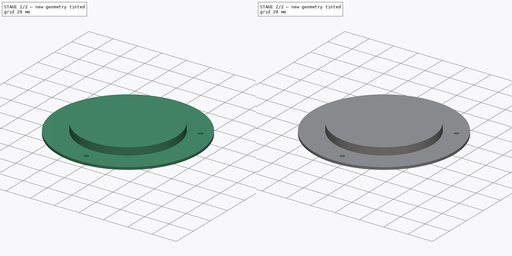
[diagram: build sequence overview — one tinted view per stage of 2, left to right]
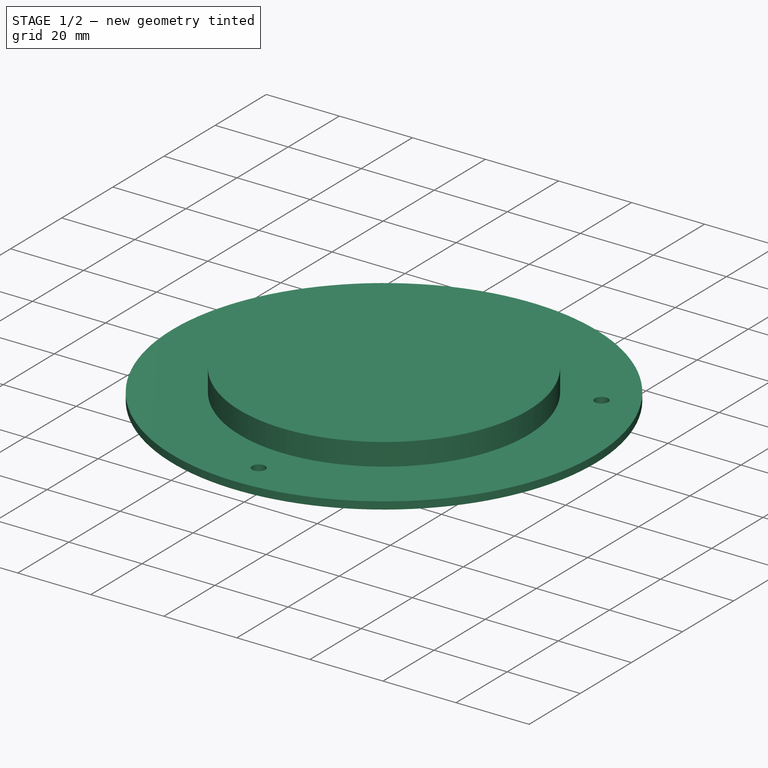
[diagram: stage 1 of 2 — iso view after this stage's code; geometry added in this stage tinted green]
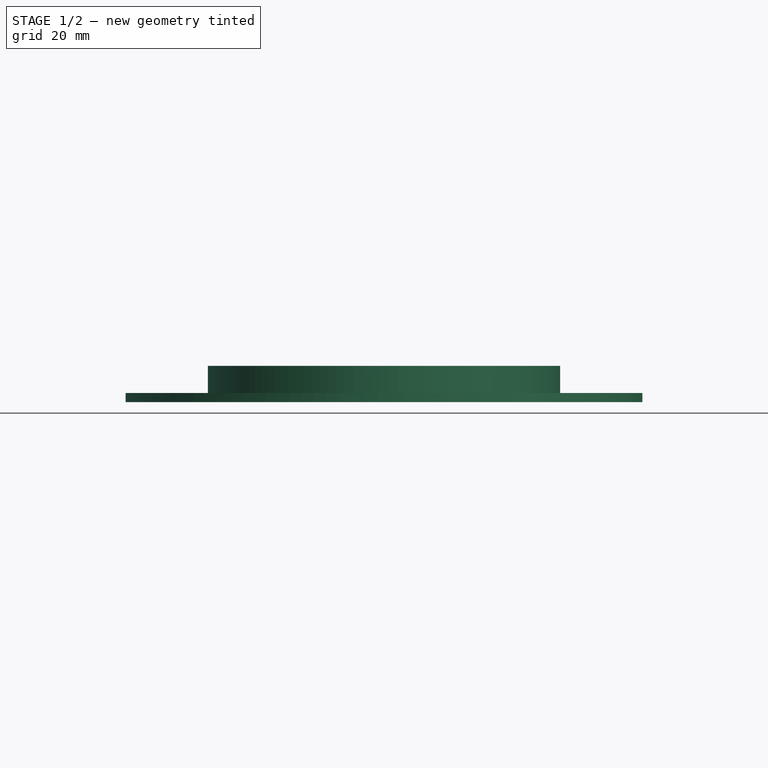
[diagram: stage 1 of 2 — front view after this stage's code; geometry added in this stage tinted green]
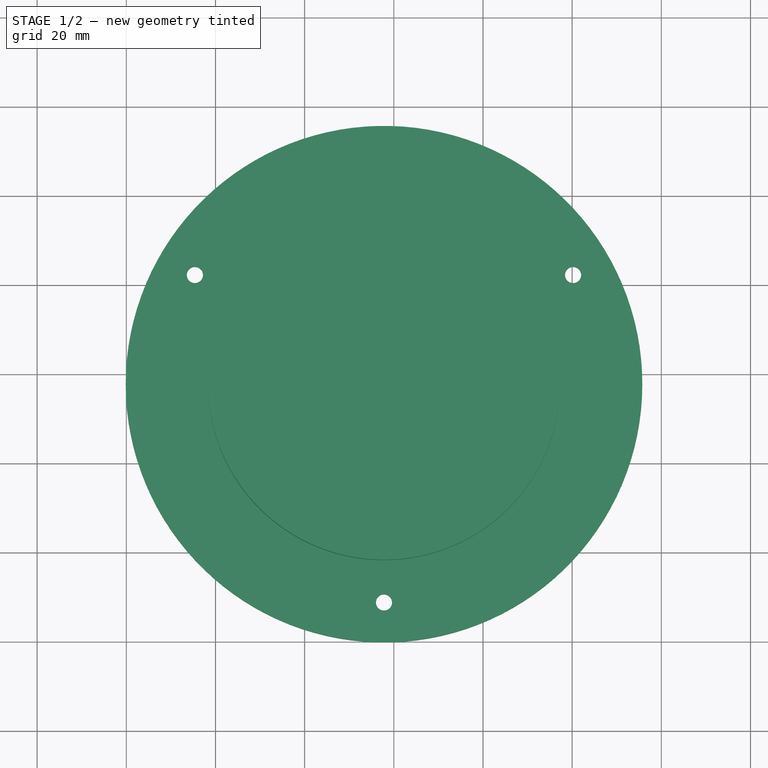
[diagram: stage 1 of 2 — top view after this stage's code; geometry added in this stage tinted green]
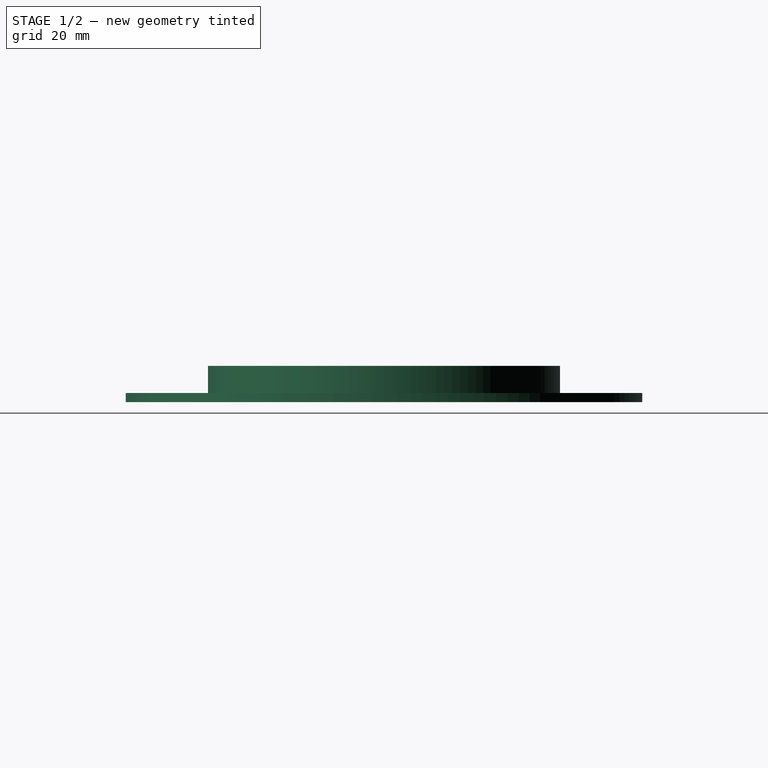
[diagram: stage 1 of 2 — right view after this stage's code; geometry added in this stage tinted green]
FCSTD DOCUMENT  (FreeCAD 0.22R38553 (Git))
Label: bottom_oops_fix
License: All rights reserved
LicenseURL: http://en.wikipedia.org/wiki/All_rights_reserved
objects: Sketcher::SketchObject×5, PartDesign::Pad×2, PartDesign::SubShapeBinder×1, PartDesign::Pocket×1, PartDesign::Body×1
note: 21 computed .brp shape members not serialized (recipe doc carries the construction recipe); baked Part::Feature solids carry a one-line shape summary decoded from their .brp

FEATURE [Sketcher::SketchObject] Sketch001  label="side"
  ArcFitTolerance = 1e-06
  FullyConstrained = true
  MakeInternals = false
  MapMode = 5
  expr: Constraints[23] = .Constraints.hole_distance
  sketch-geometry (22):
    g0: LineSegment StartX=-330.2 StartY=330.2 StartZ=0 EndX=-330.2 EndY=-330.2 EndZ=0
    g1: LineSegment StartX=-330.2 StartY=-330.2 StartZ=0 EndX=330.2 EndY=-330.2 EndZ=0
    g2: LineSegment StartX=330.2 StartY=-330.2 StartZ=0 EndX=330.2 EndY=330.2 EndZ=0
    g3: LineSegment StartX=330.2 StartY=330.2 StartZ=0 EndX=-330.2 EndY=330.2 EndZ=0
    g4: Circle CenterX=-292.1 CenterY=165.1 CenterZ=0 NormalX=0 NormalY=0 NormalZ=1 AngleXU=0 Radius=3.683
    g5: Circle CenterX=-292.1 CenterY=0 CenterZ=0 NormalX=0 NormalY=0 NormalZ=1 AngleXU=0 Radius=3.683
    g6: Circle CenterX=-292.1 CenterY=-165.1 CenterZ=0 NormalX=0 NormalY=0 NormalZ=1 AngleXU=0 Radius=3.683
    g7: Circle CenterX=292.1 CenterY=165.1 CenterZ=0 NormalX=0 NormalY=0 NormalZ=1 AngleXU=0 Radius=3.683
    g8: Circle CenterX=292.1 CenterY=0 CenterZ=0 NormalX=0 NormalY=0 NormalZ=1 AngleXU=0 Radius=3.683
    g9: Circle CenterX=292.1 CenterY=-165.1 CenterZ=0 NormalX=0 NormalY=0 NormalZ=1 AngleXU=0 Radius=3.683
    g10: LineSegment StartX=355.6 StartY=330.2 StartZ=0 EndX=355.6 EndY=320.2 EndZ=0
    g11: LineSegment StartX=355.6 StartY=320.2 StartZ=0 EndX=365.6 EndY=320.2 EndZ=0
    g12: LineSegment StartX=365.6 StartY=320.2 StartZ=0 EndX=365.6 EndY=330.2 EndZ=0
    g13: LineSegment StartX=365.6 StartY=330.2 StartZ=0 EndX=355.6 EndY=330.2 EndZ=0
    g14: Circle CenterX=177.8 CenterY=177.8 CenterZ=0 NormalX=0 NormalY=0 NormalZ=1 AngleXU=0 Radius=40.005
    g15: Circle CenterX=177.8 CenterY=128.829 CenterZ=0 NormalX=0 NormalY=0 NormalZ=1 AngleXU=0 Radius=1.8034
    g16: Circle CenterX=220.21 CenterY=202.286 CenterZ=0 NormalX=0 NormalY=0 NormalZ=1 AngleXU=0 Radius=1.8034
    g17: Circle CenterX=135.39 CenterY=202.286 CenterZ=0 NormalX=0 NormalY=0 NormalZ=1 AngleXU=0 Radius=1.8034
    g18: LineSegment [constr] StartX=177.8 StartY=177.8 StartZ=0 EndX=177.8 EndY=128.829 EndZ=0
    g19: LineSegment [constr] StartX=177.8 StartY=177.8 StartZ=0 EndX=220.21 EndY=202.286 EndZ=0
    g20: LineSegment [constr] StartX=177.8 StartY=177.8 StartZ=0 EndX=135.39 EndY=202.286 EndZ=0
    g21: Circle CenterX=-177.8 CenterY=3.9e-14 CenterZ=0 NormalX=0 NormalY=0 NormalZ=1 AngleXU=0 Radius=4.5085
  constraints (61):
    c: Coincident(g0,g1)
    c: Coincident(g1,g2)
    c: Coincident(g2,g3)
    c: Coincident(g3,g0)
    c: Vertical(g0)
    c: Vertical(g2)
    c: Horizontal(g1)
    c: Horizontal(g3)
    c: DistanceX(g3,g3) = 660.4
    c: DistanceY(g0,g0) = 660.4
    c: Symmetric(g0,g1,g-1)
    c: Diameter(g4) = 7.366
    c: DistanceX(g0,g4) = 38.1  'hole_distance'
    c: PointOnObject(g5,g-1)
    c: Equal(g4,g5)
    c: Equal(g4,g6)
    c: Vertical(g4,g5)
    c: Symmetric(g4,g6,g5)
    c: DistanceY(g4,g0) = 165.1
    c: Diameter(g7) = 7.366
    c: Equal(g7,g8)
    c: Equal(g7,g9)
    c: Symmetric(g7,g9,g8)
    c: DistanceX(g7,g2) = 38.1
    c: PointOnObject(g8,g-1)
    c: Horizontal(g4,g7)
    c: Vertical(g7,g8)
    c: Coincident(g10,g11)
    c: Coincident(g11,g12)
    c: Coincident(g12,g13)
    c: Coincident(g13,g10)
    c: Vertical(g10)
    c: Vertical(g12)
    c: Horizontal(g11)
    c: Horizontal(g13)
    c: Equal(g13,g10)
    c: Horizontal(g2,g10)
    c: Distance(g13,g13) = 10
    c: DistanceX(g2,g10) = 25.4
    c: Diameter(g14) = 80.01
    c: Diameter(g15) = 3.6068
    c: Vertical(g14,g15)
    c: Equal(g15,g16)
    c: Equal(g15,g17)
    c: Coincident(g18,g14)
    c: Coincident(g18,g15)
    c: Coincident(g19,g14)
    c: Coincident(g19,g16)
    c: Coincident(g20,g14)
    c: Coincident(g20,g17)
    c: Equal(g18,g19)
    c: Equal(g18,g20)
    c: Distance(g15,g16) = 84.8206
    c: DistanceY(g14,g2) = 152.4
    c: Distance(g14,g2) = 152.4
    c: Diameter(g21) = 9.017
    c: DistanceX(g0,g21) = 152.4
    c: DistanceY(g0,g21) = 330.2
    c: DistanceY(g18,g18) = 48.9712
    c: Angle(g20,g18) = 2.0944
    c: Angle(g18,g19) = 2.0944
FEATURE [PartDesign::SubShapeBinder] Binder001
  BindCopyOnChange = 0
  BindMode = 0
  ClaimChildren = false
  Context = -> Body001 [Binder001.]
  Fuse = false
  MakeFace = true
  OffsetFill = false
  OffsetIntersection = false
  OffsetJoinType = 0
  OffsetOpenResult = false
  PartialLoad = false
  Relative = true
  Support = -> [Sketch001]
  _Version = 2
FEATURE [Sketcher::SketchObject] Sketch006
  ArcFitTolerance = 1e-06
  AttachmentSupport = -> [XY_Plane001]
  ExternalGeometry = -> [Binder001]
  FullyConstrained = true
  MakeInternals = false
  MapMode = 5
  sketch-geometry (2):
    g0: Circle CenterX=177.8 CenterY=177.8 CenterZ=0 NormalX=0 NormalY=0 NormalZ=1 AngleXU=0 Radius=39.497
    g1: LineSegment [constr] StartX=177.8 StartY=217.297 StartZ=0 EndX=177.8 EndY=217.805 EndZ=0
  constraints (6):
    c: Coincident(g0,g-3)
    c: PointOnObject(g1,g0)
    c: PointOnObject(g1,g-3)
    c: Vertical(g1)
    c: DistanceY(g1,g1) = 0.508
    c: Vertical(g1,g0)
FEATURE [PartDesign::Pad] Pad001
  Direction = (0,0,1)
  Length = 6.096
  Length2 = 10
  Profile = -> Sketch006
  ReferenceAxis = -> Sketch006 [N_Axis]
  Suppressed = false
  Type = 0
FEATURE [Sketcher::SketchObject] Sketch007
  ArcFitTolerance = 1e-06
  AttachmentSupport = -> [XY_Plane001]
  ExternalGeometry = -> [Binder001]
  FullyConstrained = true
  MakeInternals = false
  MapMode = 5
  sketch-geometry (6):
    g0: Circle CenterX=177.8 CenterY=177.8 CenterZ=0 NormalX=0 NormalY=0 NormalZ=1 AngleXU=0 Radius=57.9374
    g1: Circle CenterX=220.21 CenterY=202.286 CenterZ=0 NormalX=0 NormalY=0 NormalZ=1 AngleXU=0 Radius=1.8034
    g2: Circle CenterX=135.39 CenterY=202.286 CenterZ=0 NormalX=0 NormalY=0 NormalZ=1 AngleXU=0 Radius=1.8034
    g3: Circle CenterX=177.8 CenterY=128.829 CenterZ=0 NormalX=0 NormalY=0 NormalZ=1 AngleXU=0 Radius=1.8034
    g4: LineSegment [constr] StartX=177.8 StartY=128.829 StartZ=0 EndX=177.8 EndY=137.795 EndZ=0
    g5: LineSegment [constr] StartX=177.8 StartY=128.829 StartZ=0 EndX=177.8 EndY=119.863 EndZ=0
  constraints (14):
    c: Coincident(g0,g-3)
    c: Coincident(g1,g-5)
    c: Equal(g1,g-5)
    c: Coincident(g2,g-4)
    c: Equal(g2,g-4)
    c: Coincident(g3,g-6)
    c: Equal(g3,g-6)
    c: Coincident(g4,g3)
    c: PointOnObject(g4,g-3)
    c: Vertical(g4)
    c: Coincident(g5,g3)
    c: PointOnObject(g5,g0)
    c: Vertical(g5)
    c: Equal(g4,g5)
FEATURE [PartDesign::Pad] Pad002
  BaseFeature = -> Pad001
  Direction = (0,0,1)
  Length = 2.032
  Length2 = 10
  Profile = -> Sketch007
  ReferenceAxis = -> Sketch007 [N_Axis]
  Reversed = true
  Suppressed = false
  Type = 0
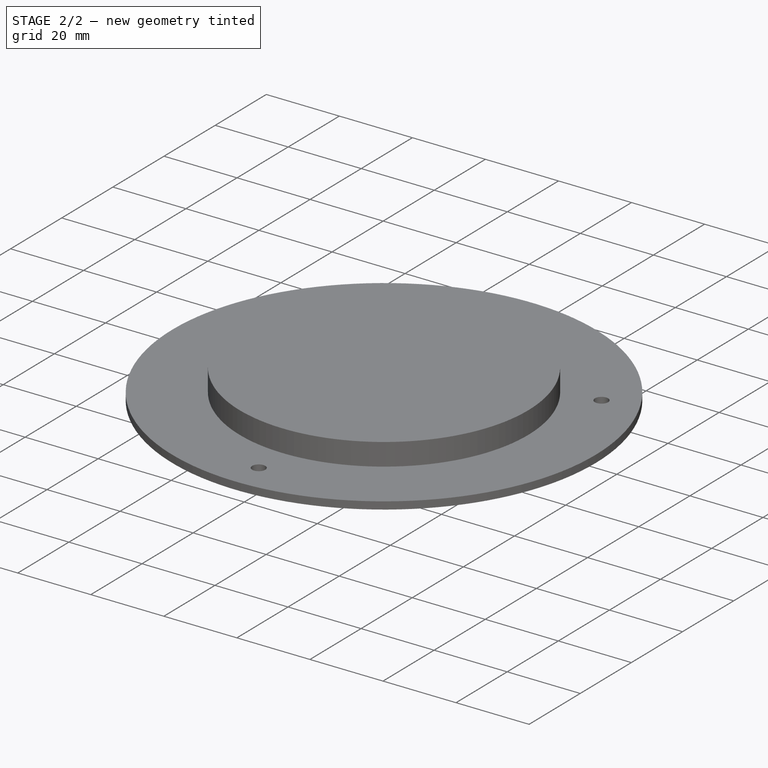
[diagram: stage 2 of 2 — iso view after this stage's code; geometry added in this stage tinted green]
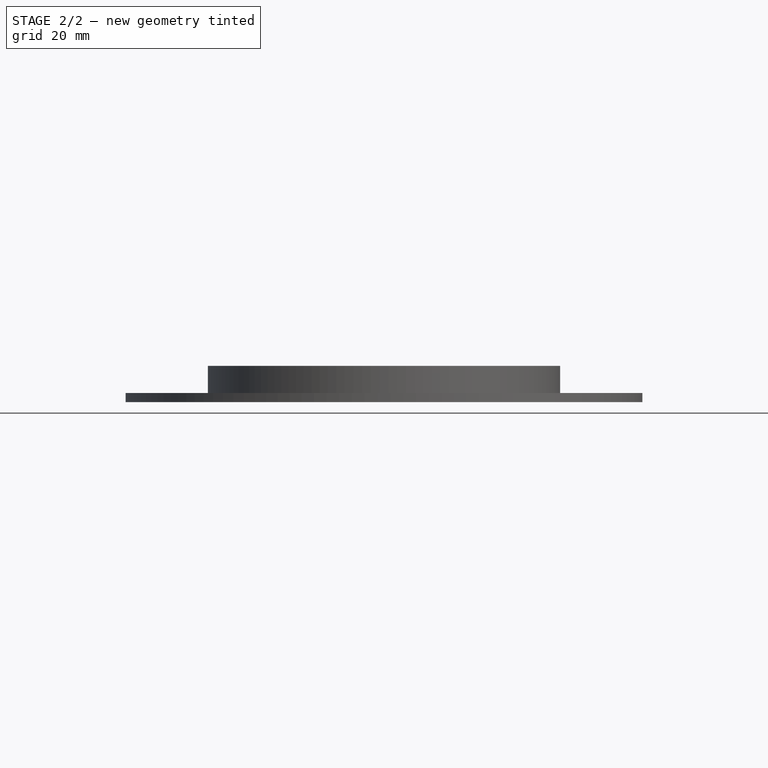
[diagram: stage 2 of 2 — front view after this stage's code; geometry added in this stage tinted green]
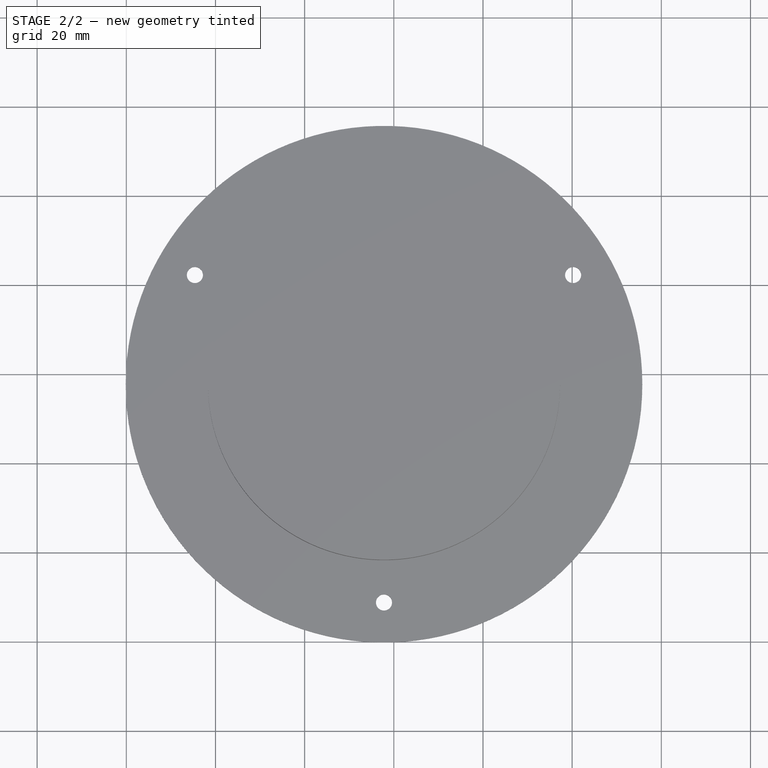
[diagram: stage 2 of 2 — top view after this stage's code; geometry added in this stage tinted green]
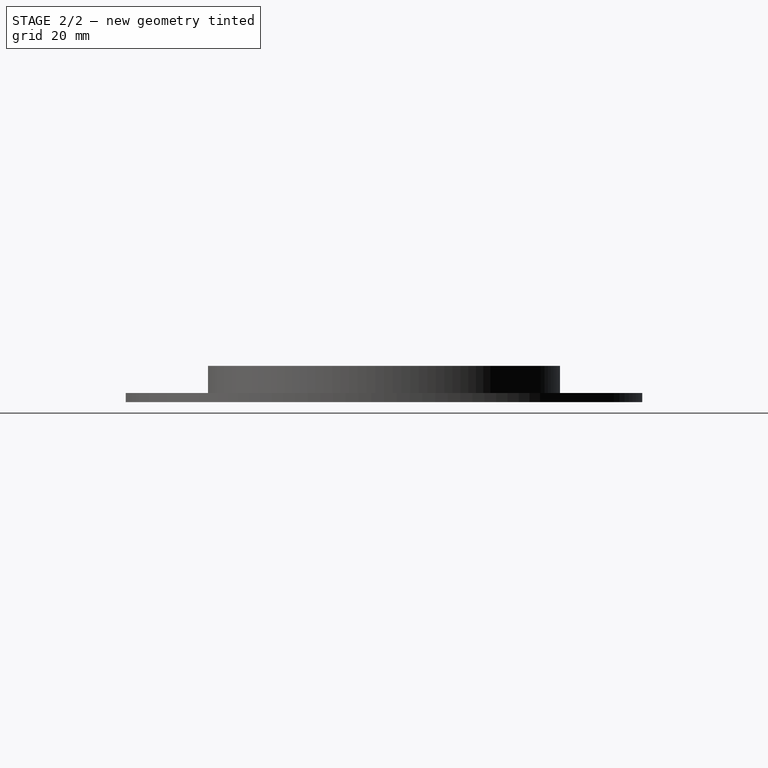
[diagram: stage 2 of 2 — right view after this stage's code; geometry added in this stage tinted green]
FEATURE [Sketcher::SketchObject] Sketch008
  ArcFitTolerance = 1e-06
  AttachmentSupport = -> [XY_Plane001]
  FullyConstrained = true
  MakeInternals = false
  MapMode = 5
FEATURE [Sketcher::SketchObject] Sketch009
  ArcFitTolerance = 1e-06
  AttachmentSupport = -> [Pad002]
  ExternalGeometry = -> [Binder001]
  FullyConstrained = true
  MakeInternals = false
  MapMode = 5
  Placement = pos=(0,0,-2.032) rot=(1,0,0;3.14159rad)
  sketch-geometry (2):
    g0: Circle CenterX=177.8 CenterY=-177.8 CenterZ=0 NormalX=0 NormalY=0 NormalZ=1 AngleXU=0 Radius=36.957
    g1: LineSegment [constr] StartX=177.8 StartY=-140.843 StartZ=0 EndX=177.8 EndY=-137.795 EndZ=0
  constraints (6):
    c: Coincident(g0,g-3)
    c: PointOnObject(g1,g0)
    c: PointOnObject(g1,g-3)
    c: Vertical(g1)
    c: Vertical(g1,g0)
    c: DistanceY(g1,g1) = 3.048
FEATURE [PartDesign::Pocket] Pocket
  BaseFeature = -> Pad002
  Direction = (0,0,1)
  Length = 5.08
  Length2 = 5
  Profile = -> Sketch009
  ReferenceAxis = -> Sketch009 [N_Axis]
  Suppressed = false
  Type = 0
  expr: Length = Pad001.Length + Pad002.Length - 0.12 "
FEATURE [PartDesign::Body] Body001  label="bottom_oops_fix"
  AllowCompound = false
  Group = -> [Sketch001,Binder001,Sketch006,Pad001,Sketch007,Pad002,Sketch008,Sketch009,Pocket]
  Origin = -> Origin001
  Tip = -> Pocket
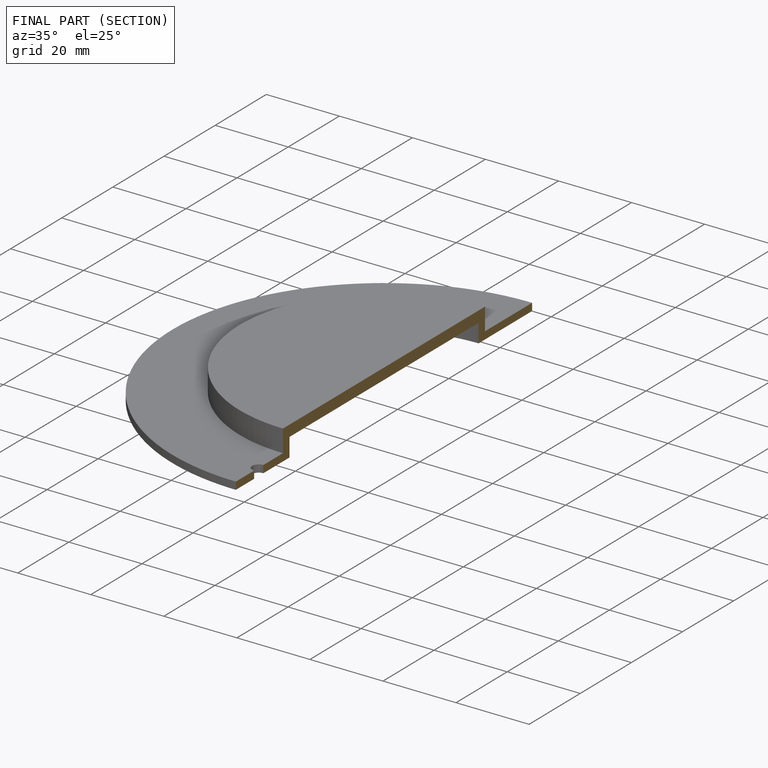
[diagram: finished part — half-section view (interior)]
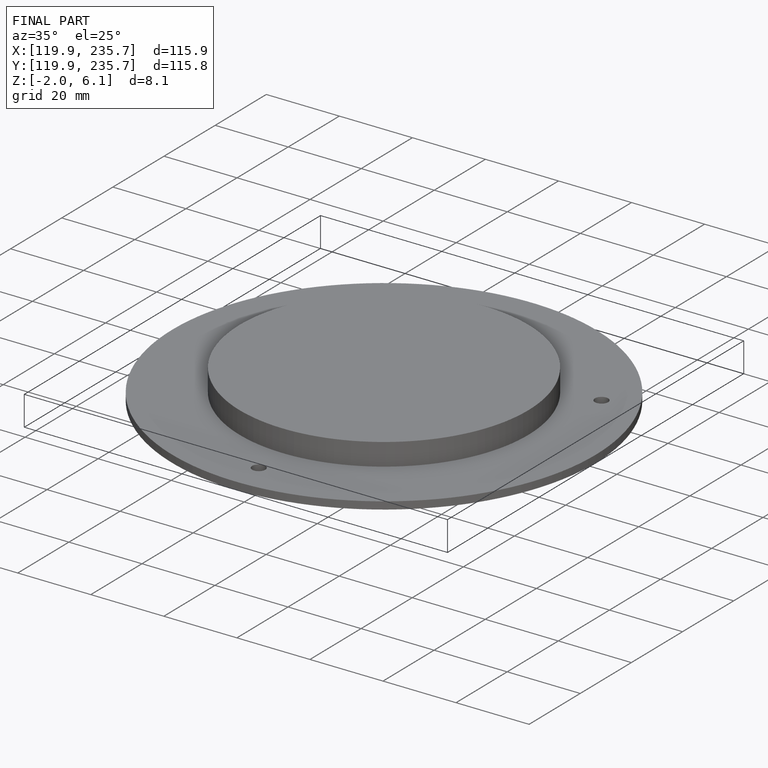
[diagram: finished part — iso view with bounding-box wireframe]
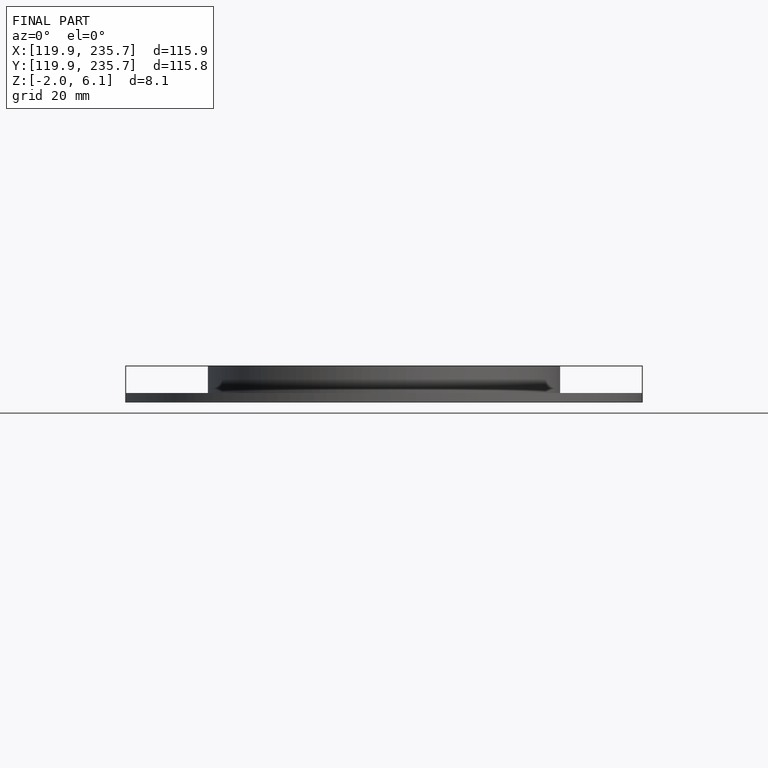
[diagram: finished part — front view with bounding-box wireframe]
